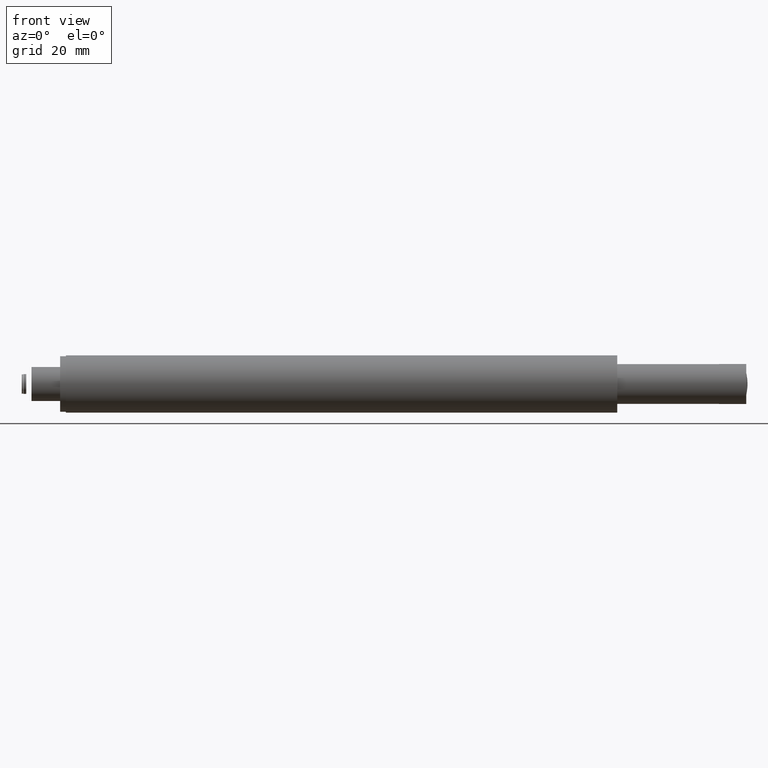
[diagram: clean part render]
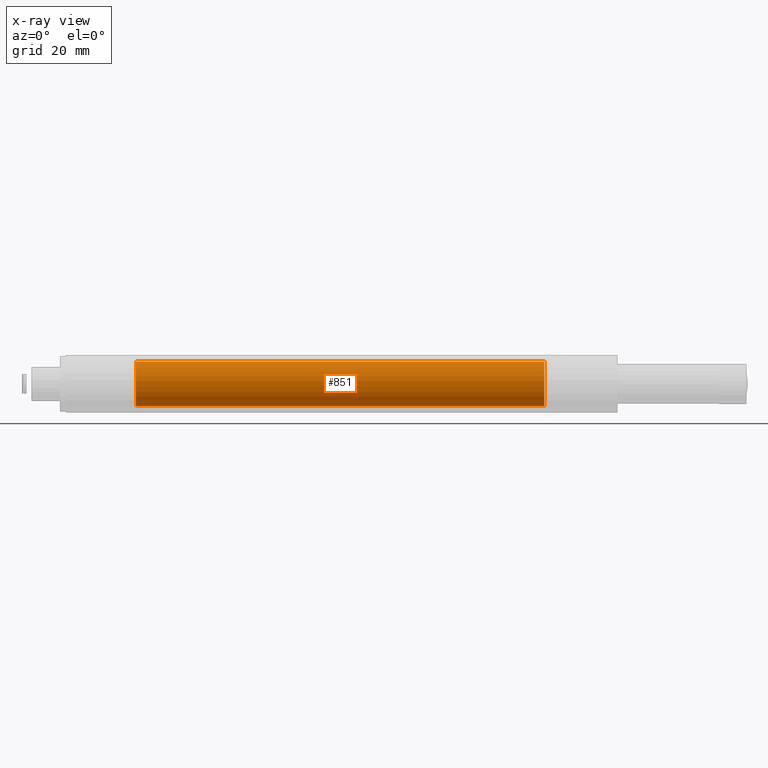
[diagram: x-ray — body ghosted, one internal face saturated and labeled with its STEP entity id]
A machine part, front view, then the same camera in x-ray: the body is ghosted and one INTERNAL B-rep face — a face not visible from any outside direction — is saturated and labeled: STEP entity #851.
In plain terms, the highlighted cylindrical surface (bore or boss wall) has radius 7.8 mm, axis along (1, 0, 0).
Its self-contained STEP definition (entity closure, byte-faithful):
#25 = CIRCLE ( 'NONE', #4399, 7.800000000000034461 ) ;
#39 = DIRECTION ( 'NONE',  ( 0.000000000000000000, 0.000000000000000000, -1.000000000000000000 ) ) ;
#546 = FACE_OUTER_BOUND ( 'NONE', #841, .T. ) ;
#689 = EDGE_CURVE ( 'NONE', #3691, #3691, #25, .T. ) ;
#841 = EDGE_LOOP ( 'NONE', ( #4463 ) ) ;
#851 = ADVANCED_FACE ( 'NONE', ( #546, #1289 ), #2424, .F. ) ;
#995 = ORIENTED_EDGE ( 'NONE', *, *, #1207, .F. ) ;
#1207 = EDGE_CURVE ( 'NONE', #3233, #3233, #3580, .T. ) ;
#1289 = FACE_OUTER_BOUND ( 'NONE', #1351, .T. ) ;
#1351 = EDGE_LOOP ( 'NONE', ( #995 ) ) ;
#1365 = DIRECTION ( 'NONE',  ( 1.000000000000000000, 0.000000000000000000, 0.000000000000000000 ) ) ;
#1952 = DIRECTION ( 'NONE',  ( 0.000000000000000000, 0.000000000000000000, -1.000000000000000000 ) ) ;
#2375 = AXIS2_PLACEMENT_3D ( 'NONE', #4186, #2603, #1952 ) ;
#2424 = CYLINDRICAL_SURFACE ( 'NONE', #3956, 7.800000000000034461 ) ;
#2603 = DIRECTION ( 'NONE',  ( 1.000000000000000000, 0.000000000000000000, 0.000000000000000000 ) ) ;
#3233 = VERTEX_POINT ( 'NONE', #4762 ) ;
#3580 = CIRCLE ( 'NONE', #2375, 7.800000000000034461 ) ;
#3691 = VERTEX_POINT ( 'NONE', #3727 ) ;
#3727 = CARTESIAN_POINT ( 'NONE',  ( -155.6054818016120862, -88.40462048150591556, -7.800000000000055778 ) ) ;
#3786 = CARTESIAN_POINT ( 'NONE',  ( -155.6054818016120862, -88.40462048150591556, -2.190669417726132445E-14 ) ) ;
#3866 = DIRECTION ( 'NONE',  ( -1.000000000000000000, -0.000000000000000000, -0.000000000000000000 ) ) ;
#3922 = CARTESIAN_POINT ( 'NONE',  ( -322.9054818016120976, -88.40462048150591556, -2.190669417726132445E-14 ) ) ;
#3956 = AXIS2_PLACEMENT_3D ( 'NONE', #3922, #1365, #3972 ) ;
#3972 = DIRECTION ( 'NONE',  ( 0.000000000000000000, 0.000000000000000000, -1.000000000000000000 ) ) ;
#4186 = CARTESIAN_POINT ( 'NONE',  ( -298.4054818016121544, -88.40462048150591556, -2.190669417726132445E-14 ) ) ;
#4399 = AXIS2_PLACEMENT_3D ( 'NONE', #3786, #3866, #39 ) ;
#4463 = ORIENTED_EDGE ( 'NONE', *, *, #689, .F. ) ;
#4762 = CARTESIAN_POINT ( 'NONE',  ( -298.4054818016121544, -88.40462048150591556, -7.800000000000055778 ) ) ;